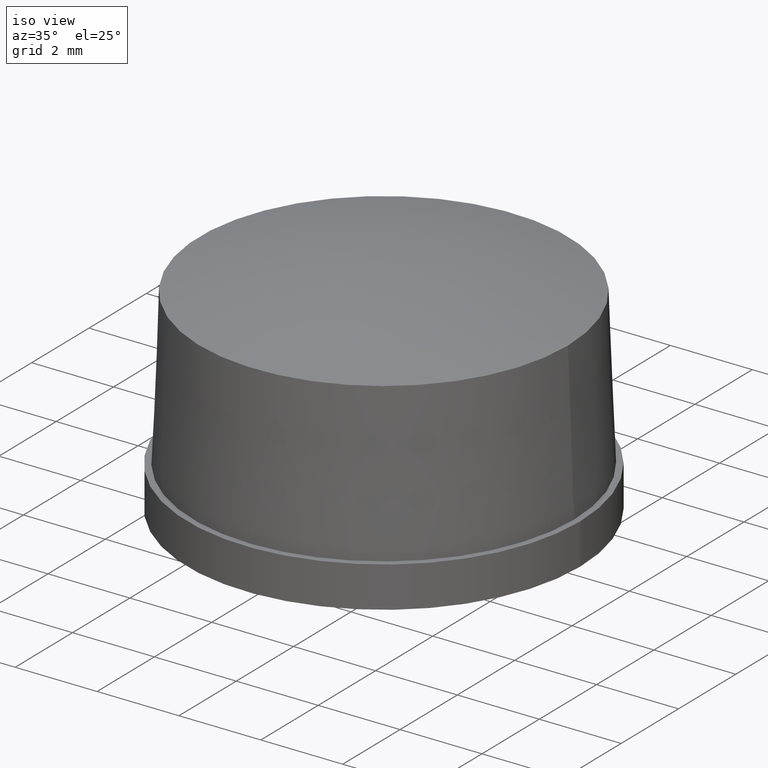
[diagram: clean part render]
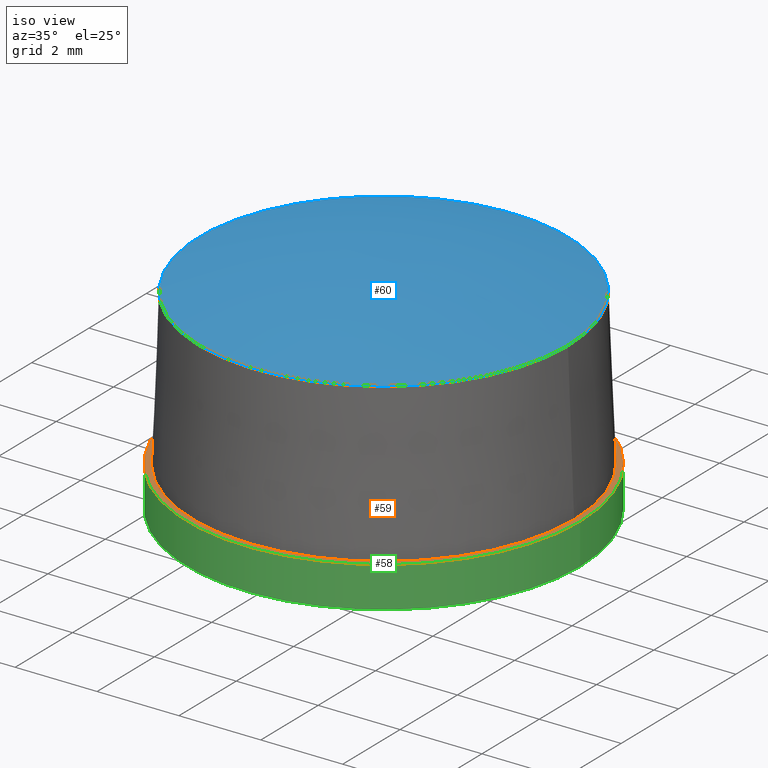
[diagram: same view with three faces highlighted in distinct colors, each labeled with its STEP entity id]
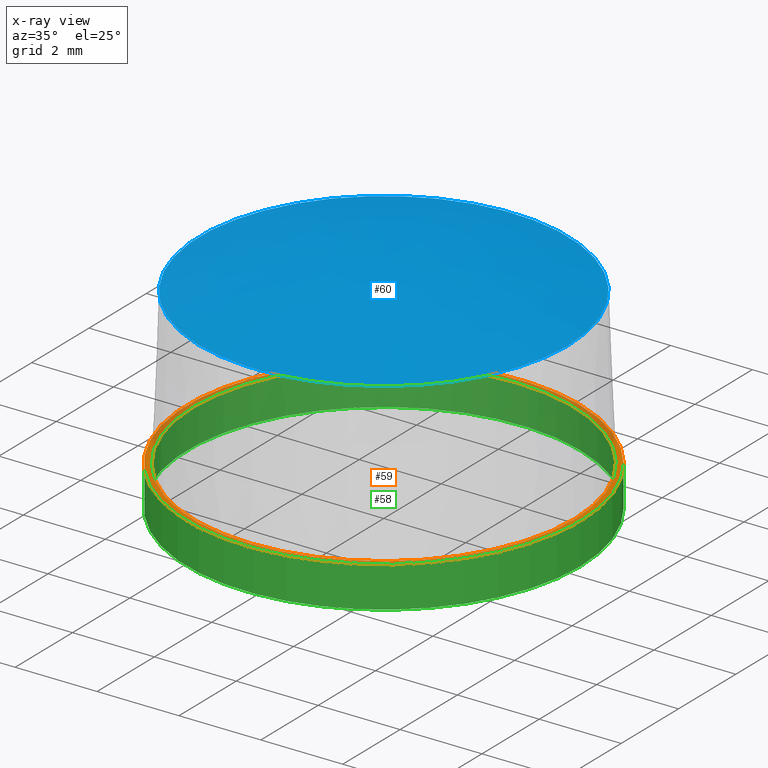
[diagram: x-ray of the same camera — body ghosted, the three highlighted faces saturated]
A machine part, iso view with three faces highlighted in distinct colors.
The next image is the same camera in x-ray (body ghosted, the three faces saturated) — at least one of them is partly hidden behind the body in this view.
Their STEP definitions:

[orange] entity #59 — the highlighted planar face has unit normal (0, 0, 1).
#18=PLANE('',#70);
#21=FACE_BOUND('',#33,.T.);
#25=FACE_OUTER_BOUND('',#32,.T.);
#32=EDGE_LOOP('',(#52));
#33=EDGE_LOOP('',(#53));
#36=CIRCLE('',#65,4.65);
#38=CIRCLE('',#69,4.8);
#40=VERTEX_POINT('',#96);
#42=VERTEX_POINT('',#102);
#44=EDGE_CURVE('',#40,#40,#36,.T.);
#46=EDGE_CURVE('',#42,#42,#38,.T.);
#52=ORIENTED_EDGE('',*,*,#46,.T.);
#53=ORIENTED_EDGE('',*,*,#44,.F.);
#59=ADVANCED_FACE('',(#25,#21),#18,.T.);
#65=AXIS2_PLACEMENT_3D('',#97,#78,#79);
#69=AXIS2_PLACEMENT_3D('',#103,#86,#87);
#70=AXIS2_PLACEMENT_3D('',#104,#88,#89);
#78=DIRECTION('center_axis',(4.84756024662494E-17,0.,1.));
#79=DIRECTION('ref_axis',(1.,0.,-5.96870416983002E-17));
#86=DIRECTION('center_axis',(4.84756024662494E-17,0.,1.));
#87=DIRECTION('ref_axis',(1.,0.,-5.96870416983002E-17));
#88=DIRECTION('center_axis',(4.84756024662494E-17,0.,1.));
#89=DIRECTION('ref_axis',(1.,0.,-4.84756024662494E-17));
#96=CARTESIAN_POINT('',(4.65,0.,0.));
#97=CARTESIAN_POINT('Origin',(4.84756024662494E-17,0.,2.2541155146806E-16));
#102=CARTESIAN_POINT('',(4.8,0.,-6.16297582203915E-32));
#103=CARTESIAN_POINT('Origin',(4.84756024662494E-17,0.,2.32682891837997E-16));
#104=CARTESIAN_POINT('Origin',(4.725,0.,-3.08148791101958E-32));

[blue] entity #60 — the highlighted spherical surface has radius 14.8143 mm.
#15=SPHERICAL_SURFACE('',#71,14.8142857142857);
#26=FACE_OUTER_BOUND('',#34,.T.);
#34=EDGE_LOOP('',(#54));
#35=CIRCLE('',#64,4.5);
#39=VERTEX_POINT('',#94);
#43=EDGE_CURVE('',#39,#39,#35,.T.);
#54=ORIENTED_EDGE('',*,*,#43,.T.);
#60=ADVANCED_FACE('',(#26),#15,.T.);
#64=AXIS2_PLACEMENT_3D('',#95,#76,#77);
#71=AXIS2_PLACEMENT_3D('',#105,#90,#91);
#76=DIRECTION('center_axis',(4.84756024662494E-17,0.,1.));
#77=DIRECTION('ref_axis',(1.,0.,0.));
#90=DIRECTION('center_axis',(6.12323399573677E-17,0.,1.));
#91=DIRECTION('ref_axis',(1.,0.,0.));
#94=CARTESIAN_POINT('',(4.5,0.,3.8));
#95=CARTESIAN_POINT('Origin',(2.32682891837997E-16,0.,3.8));
#105=CARTESIAN_POINT('Origin',(-5.15548802943E-15,0.,-10.3142857142857));

[green] entity #58 — the highlighted cylindrical surface (bore or boss wall) has radius 4.8 mm, axis along (0, 0, 1).
#16=CYLINDRICAL_SURFACE('',#68,4.8);
#20=FACE_BOUND('',#31,.T.);
#24=FACE_OUTER_BOUND('',#30,.T.);
#30=EDGE_LOOP('',(#50));
#31=EDGE_LOOP('',(#51));
#37=CIRCLE('',#67,4.8);
#38=CIRCLE('',#69,4.8);
#41=VERTEX_POINT('',#99);
#42=VERTEX_POINT('',#102);
#45=EDGE_CURVE('',#41,#41,#37,.T.);
#46=EDGE_CURVE('',#42,#42,#38,.T.);
#50=ORIENTED_EDGE('',*,*,#46,.F.);
#51=ORIENTED_EDGE('',*,*,#45,.T.);
#58=ADVANCED_FACE('',(#24,#20),#16,.T.);
#67=AXIS2_PLACEMENT_3D('',#100,#82,#83);
#68=AXIS2_PLACEMENT_3D('',#101,#84,#85);
#69=AXIS2_PLACEMENT_3D('',#103,#86,#87);
#82=DIRECTION('center_axis',(4.84756024662494E-17,0.,1.));
#83=DIRECTION('ref_axis',(1.,0.,-5.96870416983002E-17));
#84=DIRECTION('center_axis',(4.84756024662494E-17,0.,1.));
#85=DIRECTION('ref_axis',(1.,0.,-5.96870416983002E-17));
#86=DIRECTION('center_axis',(4.84756024662494E-17,0.,1.));
#87=DIRECTION('ref_axis',(1.,0.,-5.96870416983002E-17));
#99=CARTESIAN_POINT('',(4.8,0.,-1.));
#100=CARTESIAN_POINT('Origin',(7.70371977754894E-33,0.,-1.));
#101=CARTESIAN_POINT('Origin',(2.42378012331247E-17,0.,-0.5));
#102=CARTESIAN_POINT('',(4.8,0.,-6.16297582203915E-32));
#103=CARTESIAN_POINT('Origin',(4.84756024662494E-17,0.,2.32682891837997E-16));